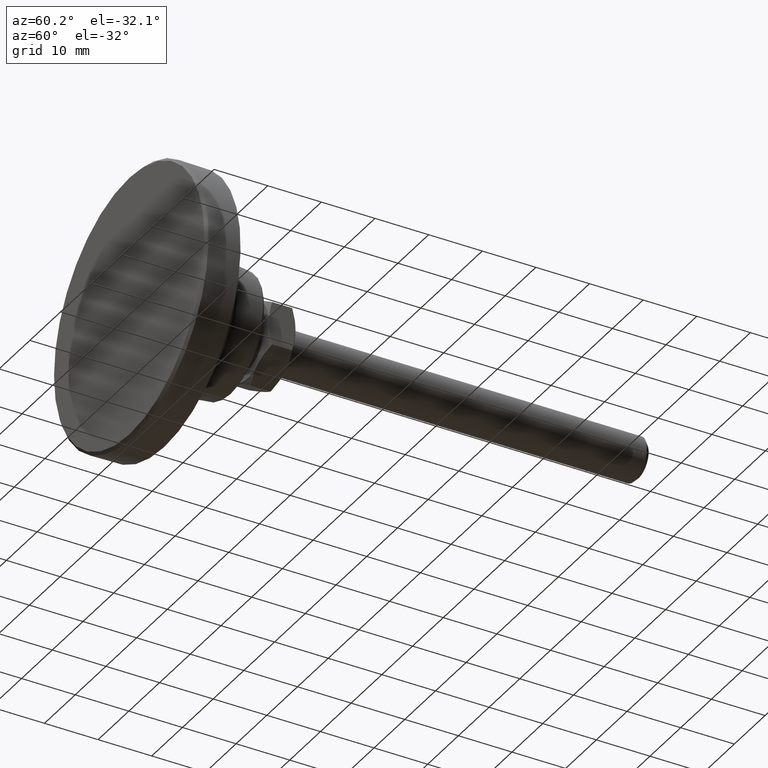
[diagram: clean part render]
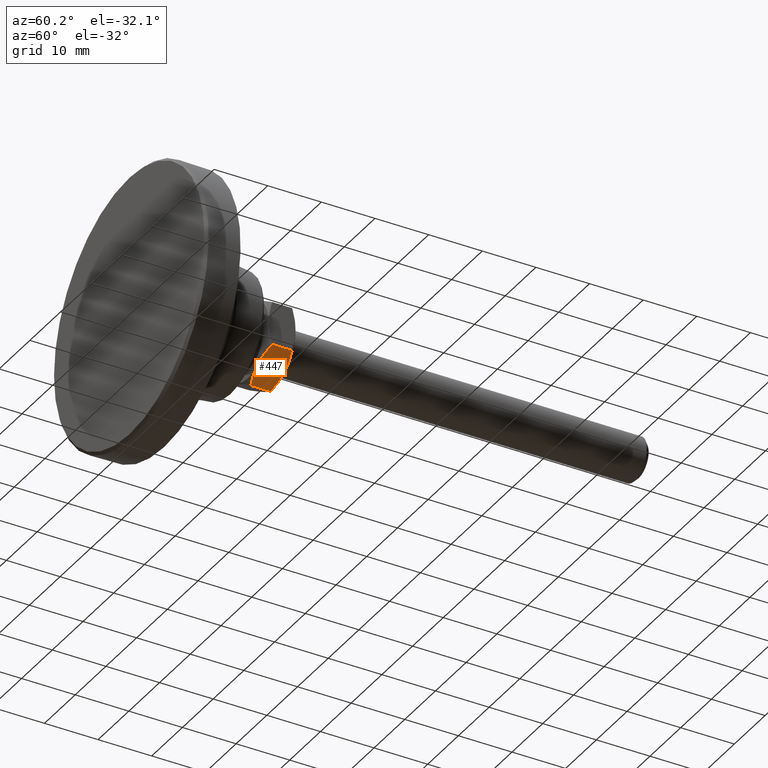
[diagram: same view with one face highlighted and labeled with its STEP entity id]
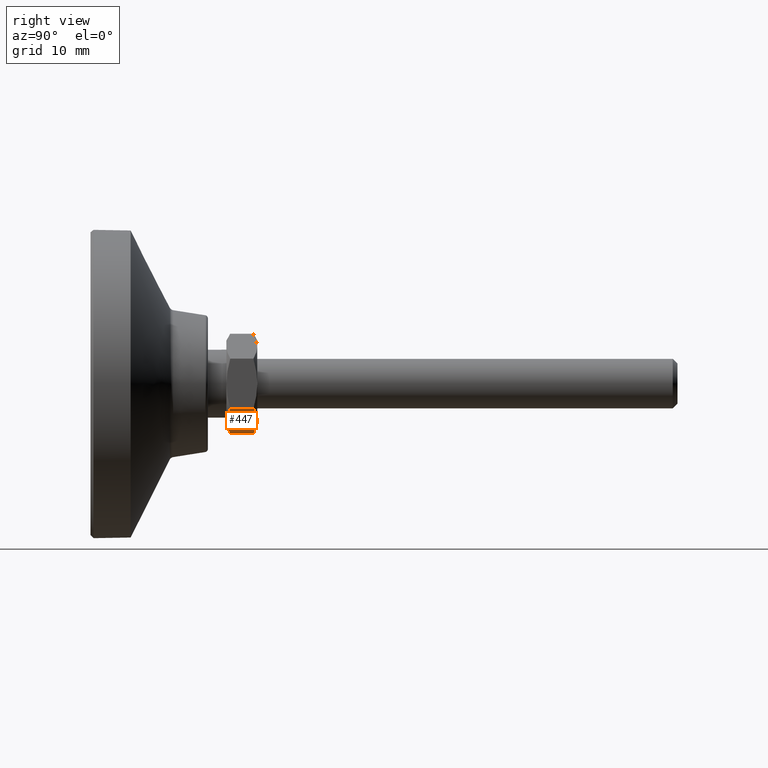
[diagram: same view with one face highlighted and labeled with its STEP entity id]
A machine part, auxiliary view. The second image highlights one B-rep face of the part: STEP entity #447.
A second angle (right view) of the same face is appended — the face is thin or edge-on in the first view.
In plain terms, the highlighted planar face has unit normal (0.5, 0, -0.866).
Its self-contained STEP definition (entity closure, byte-faithful):
#26=LINE('',#788,#32);
#27=LINE('',#797,#33);
#32=VECTOR('',#606,3.7495704353214);
#33=VECTOR('',#607,3.7495704353214);
#48=(
BOUNDED_CURVE()
B_SPLINE_CURVE(2,(#780,#781,#782),.UNSPECIFIED.,.F.,.F.)
B_SPLINE_CURVE_WITH_KNOTS((3,3),(1.00298742719398,1.70144723055341),
 .UNSPECIFIED.)
CURVE()
GEOMETRIC_REPRESENTATION_ITEM()
RATIONAL_B_SPLINE_CURVE((1.61721543938395,1.7423074889581,1.7423074889581))
REPRESENTATION_ITEM('')
);
#49=(
BOUNDED_CURVE()
B_SPLINE_CURVE(2,(#784,#785,#786),.UNSPECIFIED.,.F.,.F.)
B_SPLINE_CURVE_WITH_KNOTS((3,3),(1.70144723055341,2.39990703391285),
 .UNSPECIFIED.)
CURVE()
GEOMETRIC_REPRESENTATION_ITEM()
RATIONAL_B_SPLINE_CURVE((1.7423074889581,1.7423074889581,1.61721543938395))
REPRESENTATION_ITEM('')
);
#50=(
BOUNDED_CURVE()
B_SPLINE_CURVE(2,(#790,#791,#792),.UNSPECIFIED.,.F.,.F.)
B_SPLINE_CURVE_WITH_KNOTS((3,3),(1.00298742719398,1.70144723055341),
 .UNSPECIFIED.)
CURVE()
GEOMETRIC_REPRESENTATION_ITEM()
RATIONAL_B_SPLINE_CURVE((1.61721543938395,1.74230748895809,1.74230748895809))
REPRESENTATION_ITEM('')
);
#51=(
BOUNDED_CURVE()
B_SPLINE_CURVE(2,(#794,#795,#796),.UNSPECIFIED.,.F.,.F.)
B_SPLINE_CURVE_WITH_KNOTS((3,3),(1.70144723055341,2.39990703391284),
 .UNSPECIFIED.)
CURVE()
GEOMETRIC_REPRESENTATION_ITEM()
RATIONAL_B_SPLINE_CURVE((1.74230748895809,1.74230748895809,1.61721543938395))
REPRESENTATION_ITEM('')
);
#121=FACE_OUTER_BOUND('',#164,.T.);
#164=EDGE_LOOP('',(#353,#354,#355,#356,#357,#358));
#239=VERTEX_POINT('',#778);
#240=VERTEX_POINT('',#779);
#241=VERTEX_POINT('',#783);
#242=VERTEX_POINT('',#787);
#243=VERTEX_POINT('',#789);
#244=VERTEX_POINT('',#793);
#282=EDGE_CURVE('',#239,#240,#48,.T.);
#283=EDGE_CURVE('',#240,#241,#49,.T.);
#284=EDGE_CURVE('',#242,#241,#26,.T.);
#285=EDGE_CURVE('',#242,#243,#50,.T.);
#286=EDGE_CURVE('',#243,#244,#51,.T.);
#287=EDGE_CURVE('',#244,#239,#27,.T.);
#353=ORIENTED_EDGE('',*,*,#282,.T.);
#354=ORIENTED_EDGE('',*,*,#283,.T.);
#355=ORIENTED_EDGE('',*,*,#284,.F.);
#356=ORIENTED_EDGE('',*,*,#285,.T.);
#357=ORIENTED_EDGE('',*,*,#286,.T.);
#358=ORIENTED_EDGE('',*,*,#287,.T.);
#424=PLANE('',#500);
#447=ADVANCED_FACE('',(#121),#424,.T.);
#500=AXIS2_PLACEMENT_3D('',#777,#604,#605);
#604=DIRECTION('center_axis',(0.5,0.,-0.866025403784439));
#605=DIRECTION('ref_axis',(-0.866025403784439,0.,-0.5));
#606=DIRECTION('',(0.,1.,0.));
#607=DIRECTION('',(0.,1.,0.));
#777=CARTESIAN_POINT('Origin',(7.,21.9,-4.04145188432738));
#778=CARTESIAN_POINT('',(0.,26.3747852176607,-8.08290376865476));
#779=CARTESIAN_POINT('',(3.5,27.,-6.06217782649107));
#780=CARTESIAN_POINT('Ctrl Pts',(-2.61859650977818E-12,26.3747852176598,
-8.08290376865627));
#781=CARTESIAN_POINT('Ctrl Pts',(1.87564434701681,27.,-7.00000000000061));
#782=CARTESIAN_POINT('Ctrl Pts',(3.5,27.,-6.06217782649107));
#783=CARTESIAN_POINT('',(7.,26.3747852176607,-4.04145188432738));
#784=CARTESIAN_POINT('Ctrl Pts',(3.5,27.,-6.06217782649107));
#785=CARTESIAN_POINT('Ctrl Pts',(5.1243556529832,27.,-5.12435565298153));
#786=CARTESIAN_POINT('Ctrl Pts',(7.00000000000263,26.3747852176598,-4.04145188432586));
#787=CARTESIAN_POINT('',(7.,22.6252147823393,-4.04145188432738));
#788=CARTESIAN_POINT('',(7.,21.9,-4.04145188432738));
#789=CARTESIAN_POINT('',(3.5,22.,-6.06217782649107));
#790=CARTESIAN_POINT('Ctrl Pts',(7.00000000000261,22.6252147823402,-4.04145188432587));
#791=CARTESIAN_POINT('Ctrl Pts',(5.12435565298319,22.,-5.12435565298154));
#792=CARTESIAN_POINT('Ctrl Pts',(3.49999999999999,22.,-6.06217782649107));
#793=CARTESIAN_POINT('',(0.,22.6252147823393,-8.08290376865476));
#794=CARTESIAN_POINT('Ctrl Pts',(3.49999999999999,22.,-6.06217782649107));
#795=CARTESIAN_POINT('Ctrl Pts',(1.8756443470168,22.,-7.00000000000061));
#796=CARTESIAN_POINT('Ctrl Pts',(-2.62299012808318E-12,22.6252147823402,
-8.08290376865627));
#797=CARTESIAN_POINT('',(0.,21.9,-8.08290376865476));